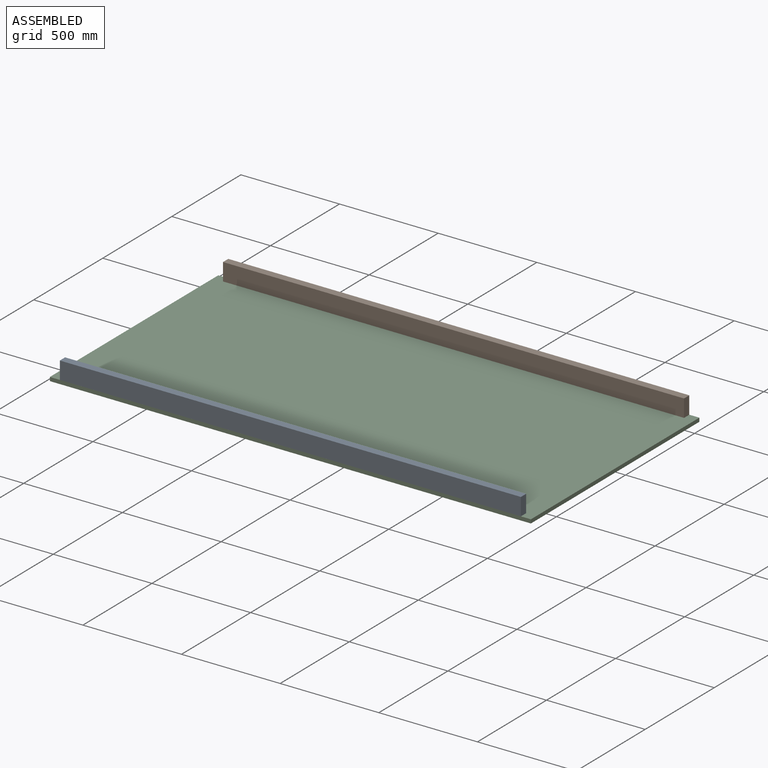
[diagram: assembled view]
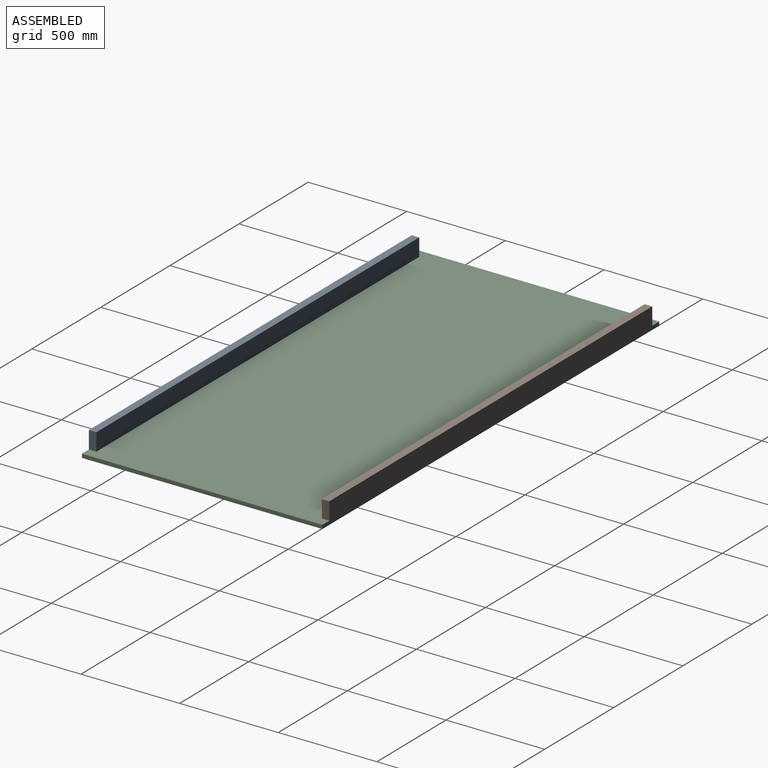
[diagram: assembled view, second angle]
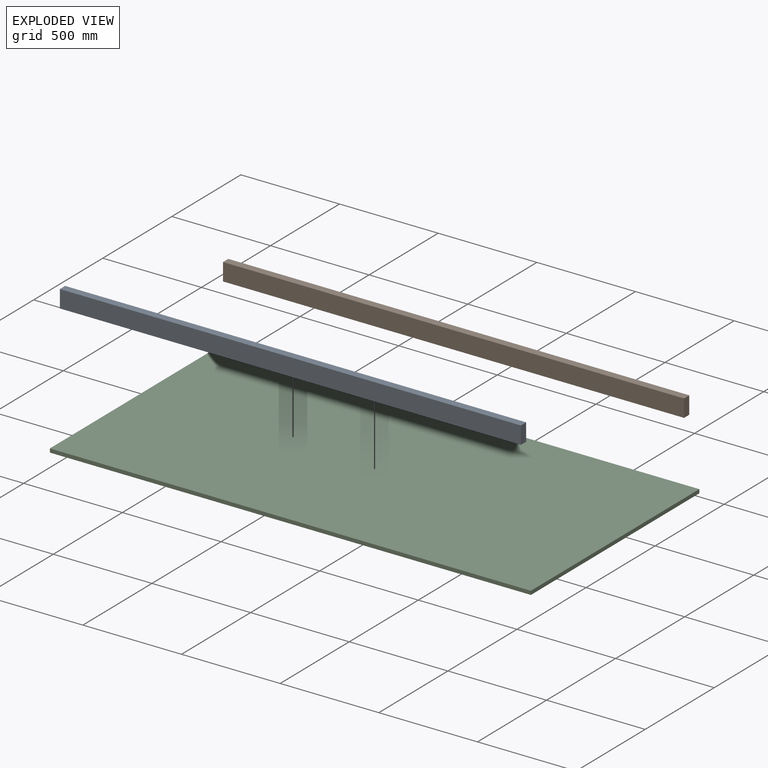
[diagram: exploded view]
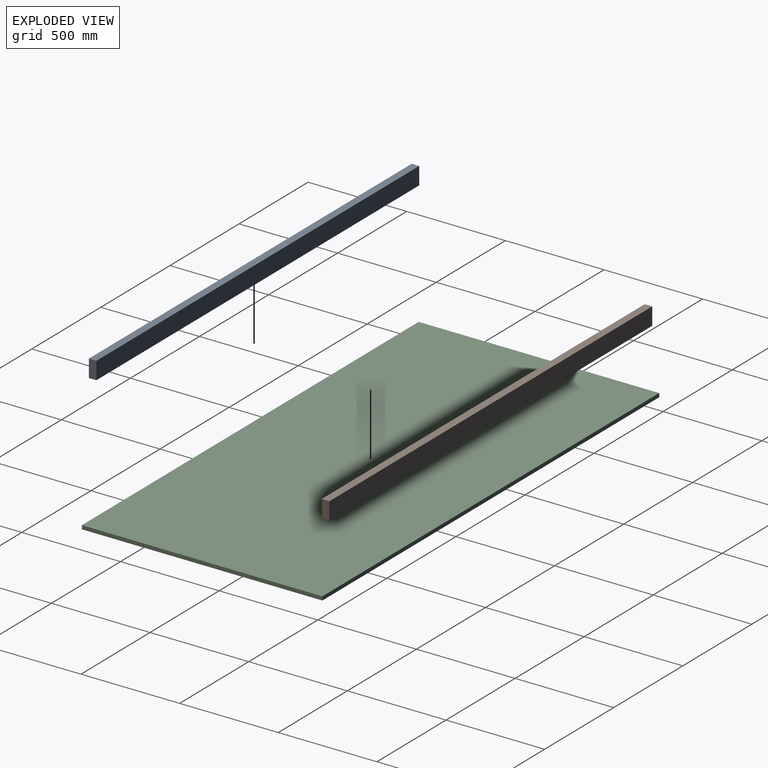
[diagram: exploded view, second angle]
ASSEMBLY  parts=3 mates=4
PART A: 6 faces, bbox 2336.8x88.9x38.1 mm
  f0: plane 88.9x38.1mm, normal (-1,0,0), area 3387.1mm2, adj f1,f3,f4,f5
  f1: plane 2336.8x38.1mm, normal (0,-1,0), area 89032.1mm2, adj f0,f2,f4,f5
  f2: plane 88.9x38.1mm, normal (1,0,0), area 3387.1mm2, adj f1,f3,f4,f5
  f3: plane 2336.8x38.1mm, normal (0,1,0), area 89032.1mm2, adj f0,f2,f4,f5
  f4: plane 2336.8x88.9mm, normal (0,0,1), area 207741.5mm2, adj f0,f1,f2,f3
  f5: plane 2336.8x88.9mm, normal (0,0,-1), area 207741.5mm2, adj f0,f1,f2,f3
PART B: same geometry as A
PART C: 6 faces, bbox 2438.4x1219.2x19.1 mm
  f0: plane 1219.2x19.05mm, normal (-1,0,0), area 23225.8mm2, adj f1,f3,f4,f5
  f1: plane 2438.4x19.05mm, normal (0,-1,0), area 46451.5mm2, adj f0,f2,f4,f5
  f2: plane 1219.2x19.05mm, normal (1,0,0), area 23225.8mm2, adj f1,f3,f4,f5
  f3: plane 2438.4x19.05mm, normal (0,1,0), area 46451.5mm2, adj f0,f2,f4,f5
  f4: plane 2438.4x1219.2mm, normal (0,0,1), area 2972897.3mm2, adj f0,f1,f2,f3
  f5: plane 2438.4x1219.2mm, normal (0,0,-1), area 2972897.3mm2, adj f0,f1,f2,f3
PLACE A rot(axis=(0,-0.71,0.71),180deg) t=(249.34,-724.44,141.55)mm
PLACE B rot(axis=(1,0,0),90deg) t=(-878.74,456.66,52.65)mm
PLACE C t=(-312.33,-53.3,33.6)mm fixed
MATE fastened C.f4 <-> A.f3  axis (0,0,1) through (-314.7,-762.54,52.65)mm
MATE planar C.f1 <-> A.f4  axis (0,-1,0) through (-314.7,-762.54,43.12)mm
MATE planar C.f3 <-> B.f5  axis (0,1,0) through (-314.7,456.66,43.12)mm
MATE fastened C.f4 <-> B.f1  axis (0,0,1) through (-314.7,456.66,52.65)mm
